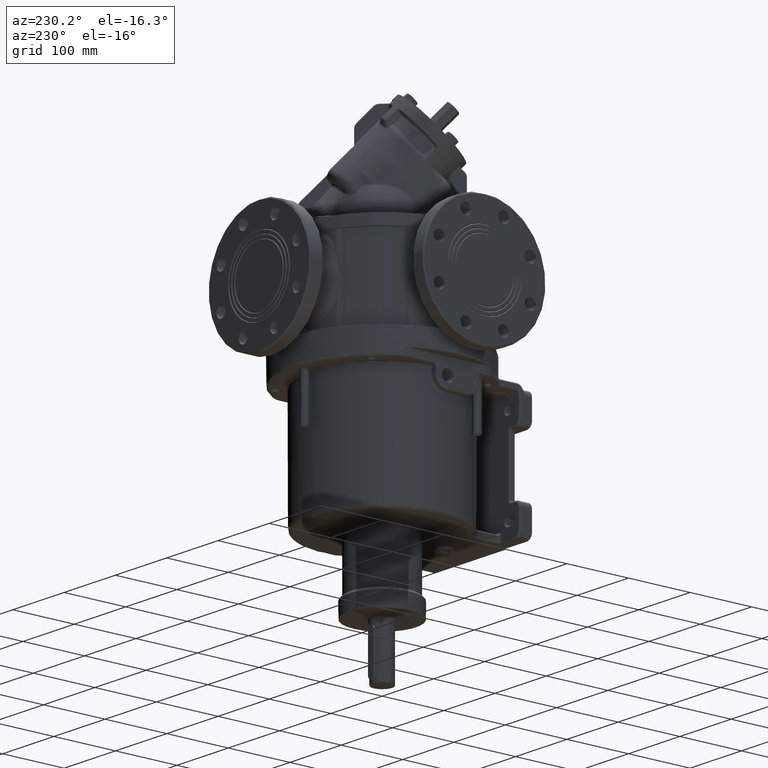
[diagram: clean part render]
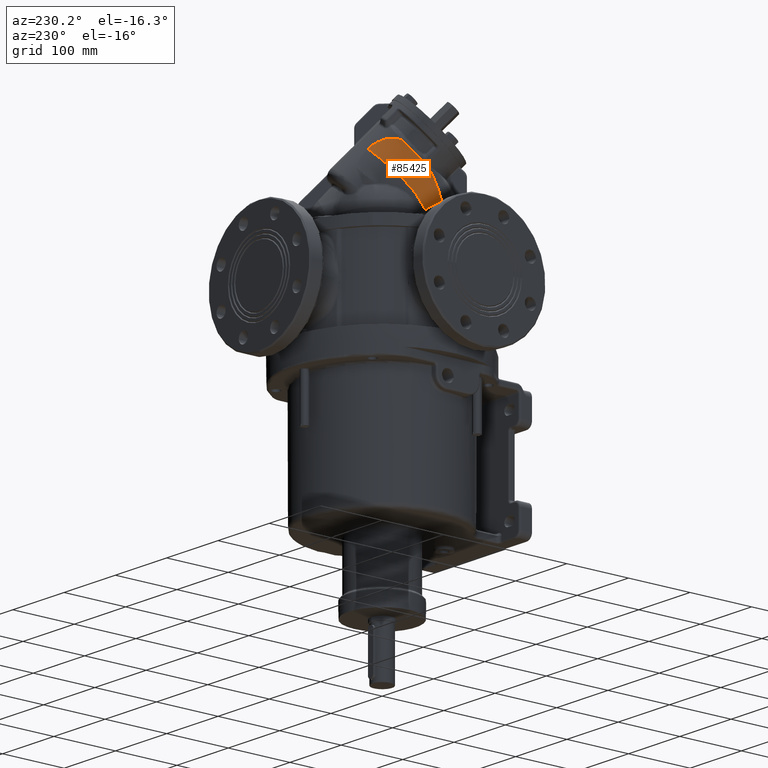
[diagram: same view with one face highlighted and labeled with its STEP entity id]
A machine part, auxiliary view. The second image highlights one B-rep face of the part: STEP entity #85425.
In plain terms, the highlighted face is a freeform B-spline surface patch.
Its self-contained STEP definition (entity closure, byte-faithful):
#62032=CARTESIAN_POINT('',(-7.795766890370E1,-3.163026634834E1,
2.191350745808E2));
#62054=CARTESIAN_POINT('',(-7.795766890370E1,-3.163026634834E1,
2.191350745808E2));
#62055=CARTESIAN_POINT('',(-7.785007196386E1,-3.127398456016E1,
2.206273279271E2));
#62056=CARTESIAN_POINT('',(-7.764650776526E1,-3.051621231929E1,
2.234939447741E2));
#62057=CARTESIAN_POINT('',(-7.728479079077E1,-2.886287450589E1,
2.288396905222E2));
#62058=CARTESIAN_POINT('',(-7.698395724556E1,-2.705772628819E1,
2.337184752670E2));
#62059=CARTESIAN_POINT('',(-7.671270245237E1,-2.512562257307E1,
2.383308673570E2));
#62060=CARTESIAN_POINT('',(-7.651337112421E1,-2.359435396583E1,
2.417029352601E2));
#62061=CARTESIAN_POINT('',(-7.630683816590E1,-2.195695373212E1,
2.450271201490E2));
#62062=CARTESIAN_POINT('',(-7.608228504321E1,-2.020293465527E1,
2.483067744475E2));
#62063=CARTESIAN_POINT('',(-7.582213924225E1,-1.828708097095E1,
2.515925383775E2));
#62064=CARTESIAN_POINT('',(-7.549851014889E1,-1.612590734815E1,
2.549733738376E2));
#62065=CARTESIAN_POINT('',(-7.508384203710E1,-1.370148851111E1,
2.584127971677E2));
#62066=CARTESIAN_POINT('',(-7.463495688528E1,-1.146150276082E1,
2.612858592491E2));
#62067=CARTESIAN_POINT('',(-7.430556338574E1,-1.002739977403E1,
2.629938400609E2));
#62068=CARTESIAN_POINT('',(-7.418646893812E1,-9.532935901854E0,
2.635688732611E2));
#62070=CARTESIAN_POINT('',(-7.418661715251E1,-9.533426749307E0,
2.635682357351E2));
#62112=CARTESIAN_POINT('',(-7.322909272156E1,-5.970964704163E0,
2.674969596968E2));
#62113=CARTESIAN_POINT('',(-7.323103399142E1,-5.982550162245E0,
2.674064023897E2));
#62114=CARTESIAN_POINT('',(-7.323560483179E1,-6.008039999562E0,
2.672297105460E2));
#62115=CARTESIAN_POINT('',(-7.324457730223E1,-6.053015421743E0,
2.669785241364E2));
#62116=CARTESIAN_POINT('',(-7.325558384303E1,-6.104211946111E0,
2.667413345586E2));
#62117=CARTESIAN_POINT('',(-7.326833590571E1,-6.160483738679E0,
2.665186814299E2));
#62118=CARTESIAN_POINT('',(-7.328275978217E1,-6.221383779892E0,
2.663112163032E2));
#62119=CARTESIAN_POINT('',(-7.329859861140E1,-6.285951621108E0,
2.661192757775E2));
#62120=CARTESIAN_POINT('',(-7.331545677556E1,-6.352834846065E0,
2.659430609050E2));
#62121=CARTESIAN_POINT('',(-7.333302679628E1,-6.421054417476E0,
2.657818288367E2));
#62122=CARTESIAN_POINT('',(-7.335117152304E1,-6.490253780693E0,
2.656340103975E2));
#62123=CARTESIAN_POINT('',(-7.336977402976E1,-6.560152555872E0,
2.654981201322E2));
#62124=CARTESIAN_POINT('',(-7.338883477484E1,-6.630879699385E0,
2.653723743970E2));
#62125=CARTESIAN_POINT('',(-7.340817658826E1,-6.701917222751E0,
2.652561661091E2));
#62126=CARTESIAN_POINT('',(-7.342737549173E1,-6.771863145489E0,
2.651500739319E2));
#62127=CARTESIAN_POINT('',(-7.344617840007E1,-6.839917836096E0,
2.650538326058E2));
#62128=CARTESIAN_POINT('',(-7.346472627185E1,-6.906684433440E0,
2.649654422771E2));
#62129=CARTESIAN_POINT('',(-7.348324850971E1,-6.973038892164E0,
2.648831437500E2));
#62130=CARTESIAN_POINT('',(-7.350183485367E1,-7.039352490917E0,
2.648059750055E2));
#62131=CARTESIAN_POINT('',(-7.352039780967E1,-7.105386441821E0,
2.647334912573E2));
#62132=CARTESIAN_POINT('',(-7.353893156468E1,-7.171166727602E0,
2.646651964621E2));
#62133=CARTESIAN_POINT('',(-7.355742583034E1,-7.236693320717E0,
2.646007337058E2));
#62134=CARTESIAN_POINT('',(-7.357588942207E1,-7.302025206959E0,
2.645397815558E2));
#62135=CARTESIAN_POINT('',(-7.359433822898E1,-7.367236088706E0,
2.644821207180E2));
#62136=CARTESIAN_POINT('',(-7.361286825726E1,-7.432683674467E0,
2.644273039504E2));
#62137=CARTESIAN_POINT('',(-7.363159604663E1,-7.498814466063E0,
2.643747075930E2));
#62138=CARTESIAN_POINT('',(-7.365067148593E1,-7.566183912342E0,
2.643237938874E2));
#62139=CARTESIAN_POINT('',(-7.367018160113E1,-7.635125542948E0,
2.642742847612E2));
#62140=CARTESIAN_POINT('',(-7.369009057728E1,-7.705537886780E0,
2.642262615295E2));
#62141=CARTESIAN_POINT('',(-7.371037822461E1,-7.777374523458E0,
2.641797652540E2));
#62142=CARTESIAN_POINT('',(-7.373104854048E1,-7.850670883801E0,
2.641348276728E2));
#62143=CARTESIAN_POINT('',(-7.375229262389E1,-7.926135067080E0,
2.640910445666E2));
#62144=CARTESIAN_POINT('',(-7.377428526997E1,-8.004425945693E0,
2.640481188589E2));
#62145=CARTESIAN_POINT('',(-7.379722269284E1,-8.086288812498E0,
2.640057893782E2));
#62146=CARTESIAN_POINT('',(-7.382117856636E1,-8.172043871139E0,
2.639640746758E2));
#62147=CARTESIAN_POINT('',(-7.384620427355E1,-8.261941603840E0,
2.639230528673E2));
#62148=CARTESIAN_POINT('',(-7.387233454167E1,-8.356185507812E0,
2.638828131011E2));
#62149=CARTESIAN_POINT('',(-7.389971396808E1,-8.455386651080E0,
2.638433357060E2));
#62150=CARTESIAN_POINT('',(-7.392851491060E1,-8.560276759225E0,
2.638046731787E2));
#62151=CARTESIAN_POINT('',(-7.395888180311E1,-8.671517671595E0,
2.637669345818E2));
#62152=CARTESIAN_POINT('',(-7.399113243596E1,-8.790447213087E0,
2.637300558281E2));
#62153=CARTESIAN_POINT('',(-7.402565188174E1,-8.918725825807E0,
2.636939983869E2));
#62154=CARTESIAN_POINT('',(-7.406252298370E1,-9.056966808221E0,
2.636589939904E2));
#62155=CARTESIAN_POINT('',(-7.410188550110E1,-9.206069601473E0,
2.636256219706E2));
#62156=CARTESIAN_POINT('',(-7.414256787184E1,-9.361932303789E0,
2.635953141034E2));
#62157=CARTESIAN_POINT('',(-7.417177766293E1,-9.475297302977E0,
2.635764555042E2));
#62158=CARTESIAN_POINT('',(-7.418678292285E1,-9.533985672980E0,
2.635675817219E2));
#62160=CARTESIAN_POINT('',(-6.854360077049E1,-1.282346014398E1,
2.067464881288E2));
#62161=CARTESIAN_POINT('',(-6.936120751387E1,-1.363635386105E1,
2.074686936145E2));
#62162=CARTESIAN_POINT('',(-7.087002357091E1,-1.530376876244E1,
2.088654591650E2));
#62163=CARTESIAN_POINT('',(-7.339028344984E1,-1.870097134621E1,
2.114701032084E2));
#62164=CARTESIAN_POINT('',(-7.529349822761E1,-2.222122184352E1,
2.138512747691E2));
#62165=CARTESIAN_POINT('',(-7.668359567025E1,-2.589368181434E1,
2.160682525554E2));
#62166=CARTESIAN_POINT('',(-7.746569944954E1,-2.870918265145E1,
2.176425998958E2));
#62167=CARTESIAN_POINT('',(-7.782388294197E1,-3.066186224617E1,
2.186532790464E2));
#62168=CARTESIAN_POINT('',(-7.795751607405E1,-3.162992347025E1,
2.191349057598E2));
#62170=CARTESIAN_POINT('',(-6.854360077049E1,-1.282346014398E1,
2.067464881288E2));
#62171=CARTESIAN_POINT('',(-6.832204314824E1,-1.097819954063E1,
2.101697159894E2));
#62172=CARTESIAN_POINT('',(-6.765862023682E1,-6.615932771830E0,
2.169749502545E2));
#62173=CARTESIAN_POINT('',(-6.579583372270E1,1.341182849376E0,
2.270219993242E2));
#62174=CARTESIAN_POINT('',(-6.283788560972E1,1.009826691767E1,
2.369002842458E2));
#62175=CARTESIAN_POINT('',(-5.855290888640E1,1.903390986299E1,
2.466382226784E2));
#62176=CARTESIAN_POINT('',(-5.269873133431E1,2.751253494730E1,
2.562976815813E2));
#62177=CARTESIAN_POINT('',(-4.630078135445E1,3.363754583592E1,
2.643511716174E2));
#62178=CARTESIAN_POINT('',(-4.015968839949E1,3.760313017621E1,
2.708354954046E2));
#62179=CARTESIAN_POINT('',(-3.502477356162E1,4.001120906050E1,
2.757265378030E2));
#62180=CARTESIAN_POINT('',(-2.936147375997E1,4.175187693717E1,
2.806414802551E2));
#62181=CARTESIAN_POINT('',(-2.523121703949E1,4.240846726611E1,
2.839400897470E2));
#62182=CARTESIAN_POINT('',(-2.308359609839E1,4.259655728451E1,
2.855916864113E2));
#62184=CARTESIAN_POINT('',(-2.308359609839E1,4.259655728451E1,
2.855916864113E2));
#62185=CARTESIAN_POINT('',(-2.324933469652E1,4.243082006869E1,
2.858260728766E2));
#62186=CARTESIAN_POINT('',(-2.357850311977E1,4.210994632364E1,
2.862717430434E2));
#62187=CARTESIAN_POINT('',(-2.405168781320E1,4.166577275001E1,
2.868714580582E2));
#62188=CARTESIAN_POINT('',(-2.451437596799E1,4.124530166129E1,
2.874245533996E2));
#62189=CARTESIAN_POINT('',(-2.497404540532E1,4.083949155526E1,
2.879452007146E2));
#62190=CARTESIAN_POINT('',(-2.544149469808E1,4.043808251826E1,
2.884471859679E2));
#62191=CARTESIAN_POINT('',(-2.593028030512E1,4.002995728077E1,
2.889435370466E2));
#62192=CARTESIAN_POINT('',(-2.644960254475E1,3.960986910594E1,
2.894372958652E2));
#62193=CARTESIAN_POINT('',(-2.700181993064E1,3.917721414367E1,
2.899269102900E2));
#62194=CARTESIAN_POINT('',(-2.758755884603E1,3.872760589826E1,
2.904217132708E2));
#62195=CARTESIAN_POINT('',(-2.819010848800E1,3.827555984057E1,
2.909027375170E2));
#62196=CARTESIAN_POINT('',(-2.878192127918E1,3.784134852427E1,
2.913483557734E2));
#62197=CARTESIAN_POINT('',(-2.933503410007E1,3.744429666858E1,
2.917403070878E2));
#62198=CARTESIAN_POINT('',(-2.986445618137E1,3.707234628015E1,
2.920924272957E2));
#62199=CARTESIAN_POINT('',(-3.038814238950E1,3.671245121015E1,
2.924174684585E2));
#62200=CARTESIAN_POINT('',(-3.092526256314E1,3.635278008239E1,
2.927232814909E2));
#62201=CARTESIAN_POINT('',(-3.149817874769E1,3.597724555468E1,
2.930241709347E2));
#62202=CARTESIAN_POINT('',(-3.212433785906E1,3.556680475031E1,
2.933474236152E2));
#62203=CARTESIAN_POINT('',(-3.283843053762E1,3.510029959502E1,
2.937045482381E2));
#62204=CARTESIAN_POINT('',(-3.364511273801E1,3.457610981115E1,
2.940902247475E2));
#62205=CARTESIAN_POINT('',(-3.450277905969E1,3.402245796130E1,
2.944774142164E2));
#62206=CARTESIAN_POINT('',(-3.537551499562E1,3.346280996947E1,
2.948464128475E2));
#62207=CARTESIAN_POINT('',(-3.623673772060E1,3.291422043589E1,
2.951844464239E2));
#62208=CARTESIAN_POINT('',(-3.705813257224E1,3.239453470081E1,
2.954808418091E2));
#62209=CARTESIAN_POINT('',(-3.782395971093E1,3.191307745989E1,
2.957331847688E2));
#62210=CARTESIAN_POINT('',(-3.854702176918E1,3.146115221202E1,
2.959492093344E2));
#62211=CARTESIAN_POINT('',(-3.923542769946E1,3.103319962386E1,
2.961338283058E2));
#62212=CARTESIAN_POINT('',(-3.990008104002E1,3.062207675802E1,
2.962916974845E2));
#62213=CARTESIAN_POINT('',(-4.055434548387E1,3.021921964941E1,
2.964268288580E2));
#62214=CARTESIAN_POINT('',(-4.121243115841E1,2.981559915522E1,
2.965419276634E2));
#62215=CARTESIAN_POINT('',(-4.188557701840E1,2.940421849460E1,
2.966373614476E2));
#62216=CARTESIAN_POINT('',(-4.261096828470E1,2.896188338817E1,
2.967154041676E2));
#62217=CARTESIAN_POINT('',(-4.342470268063E1,2.846145118600E1,
2.967890200905E2));
#62218=CARTESIAN_POINT('',(-4.438021634398E1,2.786808042936E1,
2.968538677269E2));
#62219=CARTESIAN_POINT('',(-4.542703686003E1,2.720900173393E1,
2.968993328188E2));
#62220=CARTESIAN_POINT('',(-4.646563836641E1,2.654432350998E1,
2.969191908914E2));
#62221=CARTESIAN_POINT('',(-4.743514938999E1,2.591330257127E1,
2.969153973925E2));
#62222=CARTESIAN_POINT('',(-4.832401765246E1,2.532404853940E1,
2.968970106394E2));
#62223=CARTESIAN_POINT('',(-4.910991701137E1,2.479652982827E1,
2.968578587544E2));
#62224=CARTESIAN_POINT('',(-4.984240821924E1,2.430011070015E1,
2.967958021434E2));
#62225=CARTESIAN_POINT('',(-5.057436555752E1,2.379787222215E1,
2.967131288892E2));
#62226=CARTESIAN_POINT('',(-5.136160322740E1,2.324965318624E1,
2.966012505697E2));
#62227=CARTESIAN_POINT('',(-5.217569829148E1,2.267231511276E1,
2.964616385690E2));
#62228=CARTESIAN_POINT('',(-5.297935030359E1,2.209061132942E1,
2.963016486794E2));
#62229=CARTESIAN_POINT('',(-5.374628111862E1,2.152361836005E1,
2.961287064080E2));
#62230=CARTESIAN_POINT('',(-5.448265358381E1,2.096691782776E1,
2.959479014973E2));
#62231=CARTESIAN_POINT('',(-5.518753110649E1,2.042382437071E1,
2.957467464628E2));
#62232=CARTESIAN_POINT('',(-5.586900484312E1,1.988793777044E1,
2.955272274595E2));
#62233=CARTESIAN_POINT('',(-5.654279871431E1,1.934629831220E1,
2.952879708058E2));
#62234=CARTESIAN_POINT('',(-5.722623304731E1,1.878331906200E1,
2.950260945626E2));
#62235=CARTESIAN_POINT('',(-5.792014222302E1,1.819714699526E1,
2.947340282183E2));
#62236=CARTESIAN_POINT('',(-5.841700059205E1,1.776393355823E1,
2.945261965168E2));
#62237=CARTESIAN_POINT('',(-5.866955592317E1,1.754051817187E1,
2.944102207169E2));
#62239=CARTESIAN_POINT('',(-5.866955592317E1,1.754051817187E1,
2.944102207169E2));
#62240=CARTESIAN_POINT('',(-5.872642636999E1,1.749322965409E1,
2.943349780255E2));
#62241=CARTESIAN_POINT('',(-5.884492605325E1,1.739429984870E1,
2.941737413189E2));
#62242=CARTESIAN_POINT('',(-5.904363899670E1,1.722595214961E1,
2.939089001341E2));
#62243=CARTESIAN_POINT('',(-5.925864332726E1,1.704125744479E1,
2.936174402602E2));
#62244=CARTESIAN_POINT('',(-5.949340769866E1,1.683640820056E1,
2.932964586037E2));
#62245=CARTESIAN_POINT('',(-5.974949365525E1,1.660909102579E1,
2.929422883569E2));
#62246=CARTESIAN_POINT('',(-6.002929422338E1,1.635599386482E1,
2.925507931284E2));
#62247=CARTESIAN_POINT('',(-6.033547000007E1,1.607320031689E1,
2.921169723240E2));
#62248=CARTESIAN_POINT('',(-6.067074191920E1,1.575636668233E1,
2.916355661554E2));
#62249=CARTESIAN_POINT('',(-6.103973258194E1,1.539855040462E1,
2.910980164731E2));
#62250=CARTESIAN_POINT('',(-6.144228085951E1,1.499737941546E1,
2.905028468738E2));
#62251=CARTESIAN_POINT('',(-6.189881456891E1,1.452686701498E1,
2.898158578391E2));
#62252=CARTESIAN_POINT('',(-6.228621013152E1,1.411401410740E1,
2.892225519770E2));
#62253=CARTESIAN_POINT('',(-6.262346567520E1,1.374495775472E1,
2.886992115628E2));
#62254=CARTESIAN_POINT('',(-6.291948013321E1,1.341306429313E1,
2.882344407516E2));
#62255=CARTESIAN_POINT('',(-6.318176912786E1,1.311264578317E1,
2.878184997176E2));
#62256=CARTESIAN_POINT('',(-6.341566506587E1,1.283955587485E1,
2.874443288598E2));
#62257=CARTESIAN_POINT('',(-6.362537339220E1,1.259044710409E1,
2.871062722736E2));
#62258=CARTESIAN_POINT('',(-6.381423184282E1,1.236257868625E1,
2.867997559021E2));
#62259=CARTESIAN_POINT('',(-6.398483529872E1,1.215380419102E1,
2.865211947852E2));
#62260=CARTESIAN_POINT('',(-6.413927316898E1,1.196236844882E1,
2.862676707021E2));
#62261=CARTESIAN_POINT('',(-6.427936190659E1,1.178667780823E1,
2.860365944840E2));
#62262=CARTESIAN_POINT('',(-6.440666110365E1,1.162531763399E1,
2.858257072603E2));
#62263=CARTESIAN_POINT('',(-6.452255436444E1,1.147698068924E1,
2.856329502306E2));
#62264=CARTESIAN_POINT('',(-6.462821841369E1,1.134052968832E1,
2.854565793773E2));
#62265=CARTESIAN_POINT('',(-6.472470223646E1,1.121491668608E1,
2.852950124758E2));
#62266=CARTESIAN_POINT('',(-6.481291359137E1,1.109921482758E1,
2.851468668612E2));
#62267=CARTESIAN_POINT('',(-6.489359405662E1,1.099266577614E1,
2.850110114711E2));
#62268=CARTESIAN_POINT('',(-6.496755932746E1,1.089437091285E1,
2.848861661052E2));
#62269=CARTESIAN_POINT('',(-6.503530320757E1,1.080382375633E1,
2.847715664173E2));
#62270=CARTESIAN_POINT('',(-6.509722600300E1,1.072061883288E1,
2.846666227891E2));
#62271=CARTESIAN_POINT('',(-6.515384613178E1,1.064417127115E1,
2.845704457968E2));
#62272=CARTESIAN_POINT('',(-6.520564213834E1,1.057392426077E1,
2.844824974689E2));
#62273=CARTESIAN_POINT('',(-6.525245403118E1,1.051018702067E1,
2.844022182122E2));
#62274=CARTESIAN_POINT('',(-6.529531226123E1,1.045159383592E1,
2.843311773501E2));
#62275=CARTESIAN_POINT('',(-6.533107087703E1,1.040262567132E1,
2.842625043365E2));
#62276=CARTESIAN_POINT('',(-6.535849090361E1,1.036477942299E1,
2.842346605510E2));
#62277=CARTESIAN_POINT('',(-6.536899433635E1,1.035031374694E1,
2.842166997834E2));
#62279=CARTESIAN_POINT('',(-7.050361457607E1,1.388180607263E0,
2.745954837501E2));
#62280=CARTESIAN_POINT('',(-7.044165036869E1,1.525789458104E0,
2.747183822658E2));
#62281=CARTESIAN_POINT('',(-7.030648684325E1,1.822521544650E0,
2.749772184446E2));
#62282=CARTESIAN_POINT('',(-7.007714626350E1,2.315312141507E0,
2.754327247676E2));
#62283=CARTESIAN_POINT('',(-6.981819277180E1,2.857184558687E0,
2.759395825322E2));
#62284=CARTESIAN_POINT('',(-6.953088155604E1,3.441690517023E0,
2.765000869069E2));
#62285=CARTESIAN_POINT('',(-6.921740997049E1,4.060028182132E0,
2.771074417018E2));
#62286=CARTESIAN_POINT('',(-6.889760574042E1,4.671333513245E0,
2.777232564321E2));
#62287=CARTESIAN_POINT('',(-6.856193647782E1,5.293376141696E0,
2.783648470797E2));
#62288=CARTESIAN_POINT('',(-6.820152545531E1,5.939551252827E0,
2.790482626097E2));
#62289=CARTESIAN_POINT('',(-6.782799709813E1,6.586972912108E0,
2.797505040589E2));
#62290=CARTESIAN_POINT('',(-6.742811356718E1,7.256189369061E0,
2.804951705665E2));
#62291=CARTESIAN_POINT('',(-6.701451861997E1,7.923650806798E0,
2.812577269023E2));
#62292=CARTESIAN_POINT('',(-6.657793510264E1,8.602505827562E0,
2.820538248509E2));
#62293=CARTESIAN_POINT('',(-6.613480869889E1,9.265298773645E0,
2.828538649508E2));
#62294=CARTESIAN_POINT('',(-6.572004001190E1,9.862853458924E0,
2.835899870166E2));
#62295=CARTESIAN_POINT('',(-6.548142366122E1,1.019552130178E1,
2.840192038214E2));
#62296=CARTESIAN_POINT('',(-6.536899433635E1,1.035031374694E1,
2.842166997834E2));
#74210=CARTESIAN_POINT('',(-7.322937585708E1,-5.972466227539E0,
2.674956293184E2));
#74211=CARTESIAN_POINT('',(-7.321282271934E1,-5.916995877066E0,
2.675537906100E2));
#74212=CARTESIAN_POINT('',(-7.311855447008E1,-5.602636061512E0,
2.678826805137E2));
#74213=CARTESIAN_POINT('',(-7.294074319379E1,-5.025686762801E0,
2.684789222009E2));
#74214=CARTESIAN_POINT('',(-7.268626521583E1,-4.236797015755E0,
2.692784045441E2));
#74215=CARTESIAN_POINT('',(-7.241786135682E1,-3.441730213248E0,
2.700691067699E2));
#74216=CARTESIAN_POINT('',(-7.213527136505E1,-2.641683996017E0,
2.708504777754E2));
#74217=CARTESIAN_POINT('',(-7.188779711819E1,-1.971866869365E0,
2.714933842017E2));
#74218=CARTESIAN_POINT('',(-7.168257130931E1,-1.434793013721E0,
2.720024920475E2));
#74219=CARTESIAN_POINT('',(-7.152502342024E1,-1.031544624055E0,
2.723816461821E2));
#74220=CARTESIAN_POINT('',(-7.136384587253E1,-6.280224167087E-1,
2.727580557148E2));
#74221=CARTESIAN_POINT('',(-7.119904335847E1,-2.243977500457E-1,
2.731316521140E2));
#74222=CARTESIAN_POINT('',(-7.105869526189E1,1.118979306258E-1,
2.734405795941E2));
#74223=CARTESIAN_POINT('',(-7.094461676147E1,3.808131099551E-1,
2.736862434856E2));
#74224=CARTESIAN_POINT('',(-7.085816044932E1,5.824168790044E-1,
2.738697433331E2));
#74225=CARTESIAN_POINT('',(-7.077080973502E1,7.839156590437E-1,
2.740524864879E2));
#74226=CARTESIAN_POINT('',(-7.068256834241E1,9.852864195222E-1,
2.742344649516E2));
#74227=CARTESIAN_POINT('',(-7.059344038196E1,1.186506065933E0,
2.744156706588E2));
#74228=CARTESIAN_POINT('',(-7.053343335893E1,1.320537000807E0,
2.745359530107E2));
#74229=CARTESIAN_POINT('',(-7.050328331733E1,1.387520217314E0,
2.745959618276E2));
#77614=VERTEX_POINT('',#62239);
#77615=VERTEX_POINT('',#62277);
#77616=VERTEX_POINT('',#62184);
#77617=VERTEX_POINT('',#62170);
#77623=VERTEX_POINT('',#62032);
#77625=VERTEX_POINT('',#62279);
#77937=VERTEX_POINT('',#62070);
#77939=VERTEX_POINT('',#62112);
#85281=CARTESIAN_POINT('',(-6.436142031881E1,1.170249288428E1,
2.908417622735E2));
#85282=CARTESIAN_POINT('',(-6.540935095778E1,1.038643343403E1,
2.896335219011E2));
#85283=CARTESIAN_POINT('',(-6.709536561691E1,7.954258787192E0,
2.871547927938E2));
#85284=CARTESIAN_POINT('',(-6.909431395998E1,4.470893357188E0,
2.831978309808E2));
#85285=CARTESIAN_POINT('',(-7.067428017241E1,1.195578932791E0,
2.792327962312E2));
#85286=CARTESIAN_POINT('',(-7.242001616849E1,-3.121176780239E0,
2.737603191855E2));
#85287=CARTESIAN_POINT('',(-7.402915012942E1,-8.429239785460E0,
2.666492974469E2));
#85288=CARTESIAN_POINT('',(-7.530411553218E1,-1.461281228093E1,
2.578187417224E2));
#85289=CARTESIAN_POINT('',(-7.614889439382E1,-2.052431959912E1,
2.487690316320E2));
#85290=CARTESIAN_POINT('',(-7.677721807107E1,-2.605537790664E1,
2.395605938648E2));
#85291=CARTESIAN_POINT('',(-7.741190570352E1,-3.121353736250E1,
2.299822283369E2));
#85292=CARTESIAN_POINT('',(-7.797672750894E1,-3.421290851670E1,
2.234647651814E2));
#85293=CARTESIAN_POINT('',(-7.834531258120E1,-3.560653189116E1,
2.200760421055E2));
#85294=CARTESIAN_POINT('',(-6.292539233004E1,1.346906832023E1,
2.922421555061E2));
#85295=CARTESIAN_POINT('',(-6.398619704694E1,1.226789960687E1,
2.908881790714E2));
#85296=CARTESIAN_POINT('',(-6.577811620962E1,9.998857443020E0,
2.882304640848E2));
#85297=CARTESIAN_POINT('',(-6.796197818636E1,6.642041708654E0,
2.841010560052E2));
#85298=CARTESIAN_POINT('',(-6.971198654870E1,3.422066999969E0,
2.800051326097E2));
#85299=CARTESIAN_POINT('',(-7.166326952248E1,-8.842119539385E-1,
2.743791977047E2));
#85300=CARTESIAN_POINT('',(-7.348581546576E1,-6.268165265068E0,
2.670964483420E2));
#85301=CARTESIAN_POINT('',(-7.495371071096E1,-1.263033278771E1,
2.580712879112E2));
#85302=CARTESIAN_POINT('',(-7.593840195124E1,-1.876866248839E1,
2.488318763317E2));
#85303=CARTESIAN_POINT('',(-7.666218503659E1,-2.453662445750E1,
2.394327504515E2));
#85304=CARTESIAN_POINT('',(-7.735700412764E1,-2.990822624988E1,
2.296513326050E2));
#85305=CARTESIAN_POINT('',(-7.793969918883E1,-3.300127826176E1,
2.229886400518E2));
#85306=CARTESIAN_POINT('',(-7.831138532641E1,-3.442231908020E1,
2.195226961556E2));
#85307=CARTESIAN_POINT('',(-5.965837505506E1,1.684202258E1,2.945755637987E2));
#85308=CARTESIAN_POINT('',(-6.083881452764E1,1.579372255721E1,
2.930639102432E2));
#85309=CARTESIAN_POINT('',(-6.287035462743E1,1.376121211958E1,
2.901526274673E2));
#85310=CARTESIAN_POINT('',(-6.541769123060E1,1.062399649719E1,
2.857226105021E2));
#85311=CARTESIAN_POINT('',(-6.750260636854E1,7.514580303319E0,
2.813798442453E2));
#85312=CARTESIAN_POINT('',(-6.987064884524E1,3.245517603738E0,
2.754591519439E2));
#85313=CARTESIAN_POINT('',(-7.214608669206E1,-2.261628748380E0,
2.678501886279E2));
#85314=CARTESIAN_POINT('',(-7.404386683839E1,-8.948316346031E0,
2.584659299428E2));
#85315=CARTESIAN_POINT('',(-7.535278044007E1,-1.550846846159E1,
2.488816192507E2));
#85316=CARTESIAN_POINT('',(-7.630342311158E1,-2.171903683610E1,
2.391363144857E2));
#85317=CARTESIAN_POINT('',(-7.713943551410E1,-2.748748733545E1,
2.289831980217E2));
#85318=CARTESIAN_POINT('',(-7.775632511833E1,-3.075182968829E1,
2.220517935515E2));
#85319=CARTESIAN_POINT('',(-7.812823379381E1,-3.222140416188E1,
2.184425300796E2));
#85320=CARTESIAN_POINT('',(-5.384727643342E1,2.149617179255E1,
2.968237564395E2));
#85321=CARTESIAN_POINT('',(-5.525742722677E1,2.064971879393E1,
2.951641928004E2));
#85322=CARTESIAN_POINT('',(-5.772094745964E1,1.892728588481E1,
2.920026551741E2));
#85323=CARTESIAN_POINT('',(-6.087467315630E1,1.608241338933E1,
2.872495269862E2));
#85324=CARTESIAN_POINT('',(-6.350569980978E1,1.312712585382E1,
2.826267720671E2));
#85325=CARTESIAN_POINT('',(-6.655282757881E1,8.920219880056E0,
2.763618933881E2));
#85326=CARTESIAN_POINT('',(-6.957939295469E1,3.262756783968E0,
2.683654421421E2));
#85327=CARTESIAN_POINT('',(-7.221662258204E1,-3.851504526919E0,
2.585569173324E2));
#85328=CARTESIAN_POINT('',(-7.410241011259E1,-1.097816047056E1,
2.485674518135E2));
#85329=CARTESIAN_POINT('',(-7.546539527829E1,-1.778829598480E1,
2.384162111348E2));
#85330=CARTESIAN_POINT('',(-7.655199175985E1,-2.409759845080E1,
2.278263290920E2));
#85331=CARTESIAN_POINT('',(-7.721010627554E1,-2.759683236833E1,
2.205782827441E2));
#85332=CARTESIAN_POINT('',(-7.756526076370E1,-2.913275114475E1,
2.168006443801E2));
#85333=CARTESIAN_POINT('',(-4.766010103184E1,2.567478408510E1,
2.977749817689E2));
#85334=CARTESIAN_POINT('',(-4.931359788753E1,2.500880721453E1,
2.960302314418E2));
#85335=CARTESIAN_POINT('',(-5.222372473529E1,2.356587319821E1,
2.927150250567E2));
#85336=CARTESIAN_POINT('',(-5.599936696242E1,2.098784969533E1,
2.877531388862E2));
#85337=CARTESIAN_POINT('',(-5.918908528427E1,1.817511209342E1,
2.829452299801E2));
#85338=CARTESIAN_POINT('',(-6.293095682310E1,1.402944502674E1,
2.764504398697E2));
#85339=CARTESIAN_POINT('',(-6.672774504560E1,8.244458304742E0,
2.681942204455E2));
#85340=CARTESIAN_POINT('',(-7.012778823164E1,7.594974761872E-1,
2.581014378413E2));
#85341=CARTESIAN_POINT('',(-7.261227777757E1,-6.857312741357E0,
2.478382975561E2));
#85342=CARTESIAN_POINT('',(-7.440402597130E1,-1.418464552514E1,
2.374097250588E2));
#85343=CARTESIAN_POINT('',(-7.574561027626E1,-2.096249020045E1,
2.265201972120E2));
#85344=CARTESIAN_POINT('',(-7.643268056614E1,-2.467164934922E1,
2.190564860505E2));
#85345=CARTESIAN_POINT('',(-7.676013491521E1,-2.627079246166E1,
2.151652706833E2));
#85346=CARTESIAN_POINT('',(-3.927126392E1,3.078513007851E1,2.974143187601E2));
#85347=CARTESIAN_POINT('',(-4.124219966457E1,3.034041556996E1,
2.956057304216E2));
#85348=CARTESIAN_POINT('',(-4.473784427982E1,2.924158660329E1,
2.921753138081E2));
#85349=CARTESIAN_POINT('',(-4.933113234380E1,2.699430095228E1,
2.870560916162E2));
#85350=CARTESIAN_POINT('',(-5.325619129561E1,2.436060878835E1,
2.821091469161E2));
#85351=CARTESIAN_POINT('',(-5.791211996084E1,2.029692791859E1,
2.754438738925E2));
#85352=CARTESIAN_POINT('',(-6.271964845978E1,1.436774234234E1,
2.670006280085E2));
#85353=CARTESIAN_POINT('',(-6.711412899196E1,6.452238260454E0,
2.567088530016E2));
#85354=CARTESIAN_POINT('',(-7.037190488983E1,-1.731826998366E0,
2.462527779527E2));
#85355=CARTESIAN_POINT('',(-7.270955118813E1,-9.654280298193E0,
2.356237932815E2));
#85356=CARTESIAN_POINT('',(-7.436537087758E1,-1.697274108310E1,
2.245160252620E2));
#85357=CARTESIAN_POINT('',(-7.507593896317E1,-2.093523166709E1,
2.168997315046E2));
#85358=CARTESIAN_POINT('',(-7.536125689147E1,-2.261865005797E1,
2.129300277980E2));
#85359=CARTESIAN_POINT('',(-3.146326590363E1,3.535349693543E1,
2.947593695502E2));
#85360=CARTESIAN_POINT('',(-3.370716780490E1,3.508633330124E1,
2.929308667671E2));
#85361=CARTESIAN_POINT('',(-3.770774313256E1,3.426701588842E1,
2.894713200837E2));
#85362=CARTESIAN_POINT('',(-4.301160458905E1,3.229411774898E1,
2.843269943159E2));
#85363=CARTESIAN_POINT('',(-4.757854454552E1,2.981349473142E1,
2.793698174773E2));
#85364=CARTESIAN_POINT('',(-5.303285648713E1,2.582797148277E1,
2.727074729200E2));
#85365=CARTESIAN_POINT('',(-5.871870265331E1,1.979853864631E1,
2.642955640061E2));
#85366=CARTESIAN_POINT('',(-6.396275596782E1,1.155913048849E1,
2.540679878592E2));
#85367=CARTESIAN_POINT('',(-6.786396898819E1,2.943456936385E0,
2.436827885163E2));
#85368=CARTESIAN_POINT('',(-7.063497658094E1,-5.435697386749E0,
2.331185501387E2));
#85369=CARTESIAN_POINT('',(-7.251253928557E1,-1.317722554191E1,
2.220705838195E2));
#85370=CARTESIAN_POINT('',(-7.321086561699E1,-1.735342877997E1,
2.144987899471E2));
#85371=CARTESIAN_POINT('',(-7.344749017090E1,-1.911775471127E1,
2.105547913177E2));
#85372=CARTESIAN_POINT('',(-2.532090299139E1,3.972266910665E1,
2.902793451616E2));
#85373=CARTESIAN_POINT('',(-2.775001308956E1,3.954585705717E1,
2.884188554346E2));
#85374=CARTESIAN_POINT('',(-3.208938478296E1,3.886799511102E1,
2.849236287251E2));
#85375=CARTESIAN_POINT('',(-3.786343737216E1,3.703193083375E1,
2.797797127645E2));
#85376=CARTESIAN_POINT('',(-4.285011513499E1,3.462469694434E1,
2.748607837692E2));
#85377=CARTESIAN_POINT('',(-4.881893016760E1,3.067028873715E1,
2.682904427171E2));
#85378=CARTESIAN_POINT('',(-5.505321357701E1,2.457489297082E1,
2.600557736417E2));
#85379=CARTESIAN_POINT('',(-6.079493126435E1,1.614843484264E1,
2.501035834710E2));
#85380=CARTESIAN_POINT('',(-6.504009125920E1,7.281988597978E0,
2.400282540413E2));
#85381=CARTESIAN_POINT('',(-6.801225483437E1,-1.381118908787E0,
2.297907085925E2));
#85382=CARTESIAN_POINT('',(-6.996898439363E1,-9.428622145501E0,
2.190900586162E2));
#85383=CARTESIAN_POINT('',(-7.065677528622E1,-1.381505521801E1,
2.117580088053E2));
#85384=CARTESIAN_POINT('',(-7.088090686040E1,-1.568679952471E1,
2.079328061752E2));
#85385=CARTESIAN_POINT('',(-2.293219339818E1,4.183070017147E1,
2.875416973744E2));
#85386=CARTESIAN_POINT('',(-2.541938417016E1,4.166533395309E1,
2.856528913731E2));
#85387=CARTESIAN_POINT('',(-2.986230929489E1,4.100422986917E1,
2.821229805050E2));
#85388=CARTESIAN_POINT('',(-3.577469195563E1,3.918158875994E1,
2.769696175614E2));
#85389=CARTESIAN_POINT('',(-4.088065111431E1,3.677810438225E1,
2.720718736317E2));
#85390=CARTESIAN_POINT('',(-4.698990577814E1,3.281799083928E1,
2.655625345252E2));
#85391=CARTESIAN_POINT('',(-5.336164346044E1,2.669877016910E1,
2.574535275196E2));
#85392=CARTESIAN_POINT('',(-5.920599628054E1,1.822649642347E1,
2.477025176520E2));
#85393=CARTESIAN_POINT('',(-6.349894092992E1,9.300085081637E0,
2.378579171186E2));
#85394=CARTESIAN_POINT('',(-6.647630283796E1,5.605733394132E-1,
2.278654096983E2));
#85395=CARTESIAN_POINT('',(-6.841356587248E1,-7.586550872542E0,
2.174193979267E2));
#85396=CARTESIAN_POINT('',(-6.908856745274E1,-1.205607593743E1,
2.102504463176E2));
#85397=CARTESIAN_POINT('',(-6.931044535084E1,-1.397340393032E1,
2.065024364292E2));
#85398=CARTESIAN_POINT('',(-2.190002953349E1,4.287554601838E1,
2.860541628701E2));
#85399=CARTESIAN_POINT('',(-2.440741517405E1,4.270746834249E1,
2.841466249160E2));
#85400=CARTESIAN_POINT('',(-2.888527683911E1,4.204132851214E1,
2.805925711483E2));
#85401=CARTESIAN_POINT('',(-3.484201629748E1,4.021211290588E1,
2.754287714481E2));
#85402=CARTESIAN_POINT('',(-3.998429358519E1,3.780304579956E1,
2.705393811852E2));
#85403=CARTESIAN_POINT('',(-4.613355543797E1,3.383620431883E1,
2.640610836815E2));
#85404=CARTESIAN_POINT('',(-5.253840367793E1,2.770972219119E1,
2.560208922103E2));
#85405=CARTESIAN_POINT('',(-5.839557149371E1,1.922932736362E1,
2.463833164112E2));
#85406=CARTESIAN_POINT('',(-6.267916039621E1,1.029116383428E1,
2.366708445308E2));
#85407=CARTESIAN_POINT('',(-6.563284639351E1,1.529579642567E0,
2.268198153732E2));
#85408=CARTESIAN_POINT('',(-6.754258067793E1,-6.657929175056E0,
2.165201255553E2));
#85409=CARTESIAN_POINT('',(-6.820644600342E1,-1.117022579796E1,
2.094425018590E2));
#85410=CARTESIAN_POINT('',(-6.842647048786E1,-1.311339012738E1,
2.057366653794E2));
#85411=B_SPLINE_SURFACE_WITH_KNOTS('',3,3,((#85281,#85282,#85283,#85284,#85285,
#85286,#85287,#85288,#85289,#85290,#85291,#85292,#85293),(#85294,#85295,#85296,
#85297,#85298,#85299,#85300,#85301,#85302,#85303,#85304,#85305,#85306),(#85307,
#85308,#85309,#85310,#85311,#85312,#85313,#85314,#85315,#85316,#85317,#85318,
#85319),(#85320,#85321,#85322,#85323,#85324,#85325,#85326,#85327,#85328,#85329,
#85330,#85331,#85332),(#85333,#85334,#85335,#85336,#85337,#85338,#85339,#85340,
#85341,#85342,#85343,#85344,#85345),(#85346,#85347,#85348,#85349,#85350,#85351,
#85352,#85353,#85354,#85355,#85356,#85357,#85358),(#85359,#85360,#85361,#85362,
#85363,#85364,#85365,#85366,#85367,#85368,#85369,#85370,#85371),(#85372,#85373,
#85374,#85375,#85376,#85377,#85378,#85379,#85380,#85381,#85382,#85383,#85384),(
#85385,#85386,#85387,#85388,#85389,#85390,#85391,#85392,#85393,#85394,#85395,
#85396,#85397),(#85398,#85399,#85400,#85401,#85402,#85403,#85404,#85405,#85406,
#85407,#85408,#85409,#85410)),.UNSPECIFIED.,.F.,.F.,.F.,(4,1,1,1,1,1,1,4),(4,1,
1,1,1,1,1,1,1,1,4),(4.844575427498E-2,1.177279608320E-1,1.824141031341E-1,
2.471002454362E-1,3.117863877383E-1,4.411586723425E-1,5.058448146446E-1,
5.750026970442E-1),(-9.404262672593E-3,6.216052652818E-2,1.246831580931E-1,
1.872057896579E-1,2.497284212228E-1,3.747736843526E-1,4.998189474823E-1,
6.248642106121E-1,7.499094737418E-1,8.749547368716E-1,1.010485888116E0),
.UNSPECIFIED.);
#85412=ORIENTED_EDGE('',*,*,#85271,.T.);
#85413=ORIENTED_EDGE('',*,*,#85030,.F.);
#85414=ORIENTED_EDGE('',*,*,#84415,.F.);
#85415=ORIENTED_EDGE('',*,*,#83578,.T.);
#85416=ORIENTED_EDGE('',*,*,#78619,.T.);
#85418=ORIENTED_EDGE('',*,*,#85417,.T.);
#85420=ORIENTED_EDGE('',*,*,#85419,.F.);
#85422=ORIENTED_EDGE('',*,*,#85421,.F.);
#85423=EDGE_LOOP('',(#85412,#85413,#85414,#85415,#85416,#85418,#85420,#85422));
#85424=FACE_OUTER_BOUND('',#85423,.F.);
#85425=ADVANCED_FACE('',(#85424),#85411,.T.);
#62069=B_SPLINE_CURVE_WITH_KNOTS('',3,(#62054,#62055,#62056,#62057,#62058,
#62059,#62060,#62061,#62062,#62063,#62064,#62065,#62066,#62067,#62068),
.UNSPECIFIED.,.F.,.F.,(4,1,1,1,1,1,1,1,1,1,1,1,4),(0.E0,7.992338567025E-2,
1.598467713405E-1,3.196935426810E-1,3.996169283512E-1,4.795403140215E-1,
5.594636996917E-1,6.393870853620E-1,7.193104710322E-1,7.992338567025E-1,
8.791572423727E-1,9.590806280430E-1,1.E0),.UNSPECIFIED.);
#62159=B_SPLINE_CURVE_WITH_KNOTS('',3,(#62112,#62113,#62114,#62115,#62116,
#62117,#62118,#62119,#62120,#62121,#62122,#62123,#62124,#62125,#62126,#62127,
#62128,#62129,#62130,#62131,#62132,#62133,#62134,#62135,#62136,#62137,#62138,
#62139,#62140,#62141,#62142,#62143,#62144,#62145,#62146,#62147,#62148,#62149,
#62150,#62151,#62152,#62153,#62154,#62155,#62156,#62157,#62158),.UNSPECIFIED.,
.F.,.F.,(4,1,1,1,1,1,1,1,1,1,1,1,1,1,1,1,1,1,1,1,1,1,1,1,1,1,1,1,1,1,1,1,1,1,1,
1,1,1,1,1,1,1,1,1,4),(0.E0,2.272727272727E-2,4.545454545455E-2,
6.818181818182E-2,9.090909090909E-2,1.136363636364E-1,1.363636363636E-1,
1.590909090909E-1,1.818181818182E-1,2.045454545455E-1,2.272727272727E-1,2.5E-1,
2.727272727273E-1,2.954545454545E-1,3.181818181818E-1,3.409090909091E-1,
3.636363636364E-1,3.863636363636E-1,4.090909090909E-1,4.318181818182E-1,
4.545454545455E-1,4.772727272727E-1,5.E-1,5.227272727273E-1,5.454545454545E-1,
5.681818181818E-1,5.909090909091E-1,6.136363636364E-1,6.363636363636E-1,
6.590909090909E-1,6.818181818182E-1,7.045454545455E-1,7.272727272727E-1,7.5E-1,
7.727272727273E-1,7.954545454545E-1,8.181818181818E-1,8.409090909091E-1,
8.636363636364E-1,8.863636363636E-1,9.090909090909E-1,9.318181818182E-1,
9.545454545455E-1,9.772727272727E-1,1.E0),.UNSPECIFIED.);
#62169=B_SPLINE_CURVE_WITH_KNOTS('',3,(#62160,#62161,#62162,#62163,#62164,
#62165,#62166,#62167,#62168),.UNSPECIFIED.,.F.,.F.,(4,1,1,1,1,1,4),(0.E0,
1.441932222205E-1,2.883864444411E-1,5.767728888822E-1,7.209661111027E-1,
8.651593333232E-1,1.E0),.UNSPECIFIED.);
#62183=B_SPLINE_CURVE_WITH_KNOTS('',3,(#62170,#62171,#62172,#62173,#62174,
#62175,#62176,#62177,#62178,#62179,#62180,#62181,#62182),.UNSPECIFIED.,.F.,.F.,(
4,1,1,1,1,1,1,1,1,1,4),(0.E0,1.250452631296E-1,2.500905262592E-1,
3.751357893888E-1,5.001810525183E-1,6.252263156479E-1,7.502715787775E-1,
8.127942103423E-1,8.753168419071E-1,9.378394734719E-1,1.E0),.UNSPECIFIED.);
#62238=B_SPLINE_CURVE_WITH_KNOTS('',3,(#62184,#62185,#62186,#62187,#62188,
#62189,#62190,#62191,#62192,#62193,#62194,#62195,#62196,#62197,#62198,#62199,
#62200,#62201,#62202,#62203,#62204,#62205,#62206,#62207,#62208,#62209,#62210,
#62211,#62212,#62213,#62214,#62215,#62216,#62217,#62218,#62219,#62220,#62221,
#62222,#62223,#62224,#62225,#62226,#62227,#62228,#62229,#62230,#62231,#62232,
#62233,#62234,#62235,#62236,#62237),.UNSPECIFIED.,.F.,.F.,(4,1,1,1,1,1,1,1,1,1,
1,1,1,1,1,1,1,1,1,1,1,1,1,1,1,1,1,1,1,1,1,1,1,1,1,1,1,1,1,1,1,1,1,1,1,1,1,1,1,1,
1,4),(0.E0,1.960784313725E-2,3.921568627451E-2,5.882352941176E-2,
7.843137254902E-2,9.803921568627E-2,1.176470588235E-1,1.372549019608E-1,
1.568627450980E-1,1.764705882353E-1,1.960784313725E-1,2.156862745098E-1,
2.352941176471E-1,2.549019607843E-1,2.745098039216E-1,2.941176470588E-1,
3.137254901961E-1,3.333333333333E-1,3.529411764706E-1,3.725490196078E-1,
3.921568627451E-1,4.117647058824E-1,4.313725490196E-1,4.509803921569E-1,
4.705882352941E-1,4.901960784314E-1,5.098039215686E-1,5.294117647059E-1,
5.490196078431E-1,5.686274509804E-1,5.882352941176E-1,6.078431372549E-1,
6.274509803922E-1,6.470588235294E-1,6.666666666667E-1,6.862745098039E-1,
7.058823529412E-1,7.254901960784E-1,7.450980392157E-1,7.647058823529E-1,
7.843137254902E-1,8.039215686275E-1,8.235294117647E-1,8.431372549020E-1,
8.627450980392E-1,8.823529411765E-1,9.019607843137E-1,9.215686274510E-1,
9.411764705882E-1,9.607843137255E-1,9.803921568627E-1,1.E0),.UNSPECIFIED.);
#62278=B_SPLINE_CURVE_WITH_KNOTS('',3,(#62239,#62240,#62241,#62242,#62243,
#62244,#62245,#62246,#62247,#62248,#62249,#62250,#62251,#62252,#62253,#62254,
#62255,#62256,#62257,#62258,#62259,#62260,#62261,#62262,#62263,#62264,#62265,
#62266,#62267,#62268,#62269,#62270,#62271,#62272,#62273,#62274,#62275,#62276,
#62277),.UNSPECIFIED.,.F.,.F.,(4,1,1,1,1,1,1,1,1,1,1,1,1,1,1,1,1,1,1,1,1,1,1,1,
1,1,1,1,1,1,1,1,1,1,1,1,4),(0.E0,2.777777777778E-2,5.555555555556E-2,
8.333333333333E-2,1.111111111111E-1,1.388888888889E-1,1.666666666667E-1,
1.944444444444E-1,2.222222222222E-1,2.5E-1,2.777777777778E-1,3.055555555556E-1,
3.333333333333E-1,3.611111111111E-1,3.888888888889E-1,4.166666666667E-1,
4.444444444444E-1,4.722222222222E-1,5.E-1,5.277777777778E-1,5.555555555556E-1,
5.833333333333E-1,6.111111111111E-1,6.388888888889E-1,6.666666666667E-1,
6.944444444444E-1,7.222222222222E-1,7.5E-1,7.777777777778E-1,8.055555555556E-1,
8.333333333333E-1,8.611111111111E-1,8.888888888889E-1,9.166666666667E-1,
9.444444444444E-1,9.722222222222E-1,1.E0),.UNSPECIFIED.);
#62297=B_SPLINE_CURVE_WITH_KNOTS('',3,(#62279,#62280,#62281,#62282,#62283,
#62284,#62285,#62286,#62287,#62288,#62289,#62290,#62291,#62292,#62293,#62294,
#62295,#62296),.UNSPECIFIED.,.F.,.F.,(4,1,1,1,1,1,1,1,1,1,1,1,1,1,1,4),(0.E0,
6.666666666667E-2,1.333333333333E-1,2.E-1,2.666666666667E-1,3.333333333333E-1,
4.E-1,4.666666666667E-1,5.333333333333E-1,6.E-1,6.666666666667E-1,
7.333333333333E-1,8.E-1,8.666666666667E-1,9.333333333333E-1,1.E0),
.UNSPECIFIED.);
#74230=B_SPLINE_CURVE_WITH_KNOTS('',3,(#74210,#74211,#74212,#74213,#74214,
#74215,#74216,#74217,#74218,#74219,#74220,#74221,#74222,#74223,#74224,#74225,
#74226,#74227,#74228,#74229),.UNSPECIFIED.,.F.,.F.,(4,1,1,1,1,1,1,1,1,1,1,1,1,1,
1,1,1,4),(0.E0,2.328625608325E-2,1.318100054073E-1,2.403337547314E-1,
3.488575040555E-1,4.573812533796E-1,5.659050027037E-1,6.201668773657E-1,
6.744287520278E-1,7.286906266898E-1,7.829525013518E-1,8.372143760139E-1,
8.643453133449E-1,8.914762506759E-1,9.186071880069E-1,9.457381253380E-1,
9.728690626690E-1,1.E0),.UNSPECIFIED.);
#78619=EDGE_CURVE('',#77616,#77614,#62238,.T.);
#83578=EDGE_CURVE('',#77617,#77616,#62183,.T.);
#84415=EDGE_CURVE('',#77617,#77623,#62169,.T.);
#85030=EDGE_CURVE('',#77623,#77937,#62069,.T.);
#85271=EDGE_CURVE('',#77939,#77937,#62159,.T.);
#85417=EDGE_CURVE('',#77614,#77615,#62278,.T.);
#85419=EDGE_CURVE('',#77625,#77615,#62297,.T.);
#85421=EDGE_CURVE('',#77939,#77625,#74230,.T.);